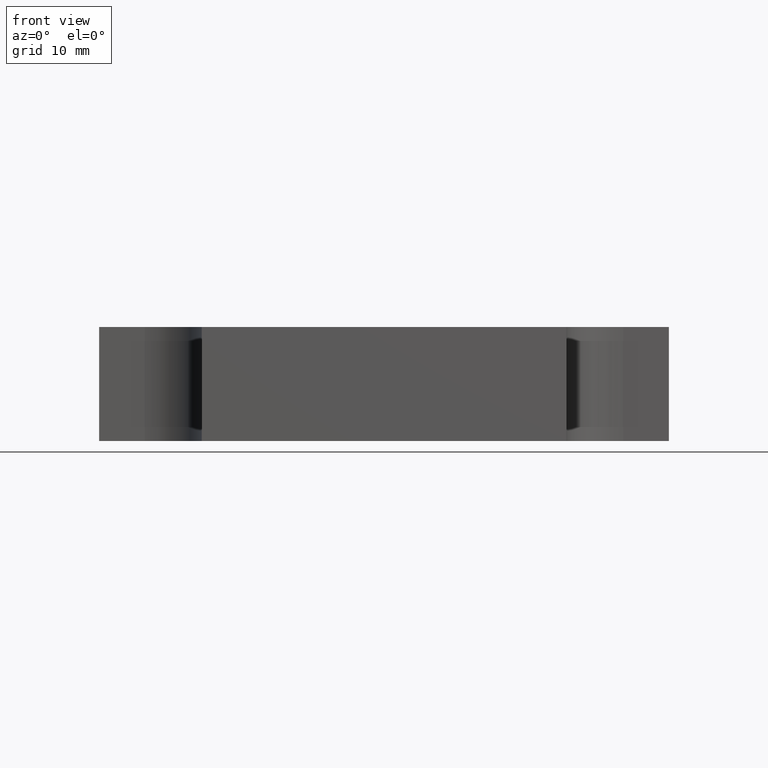
[diagram: clean part render]
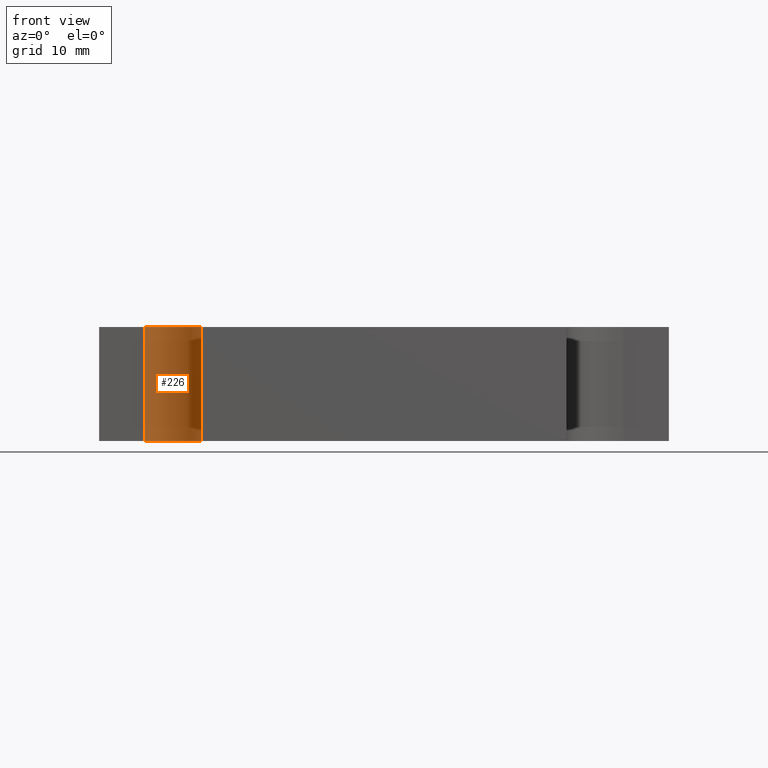
[diagram: same view with one face highlighted and labeled with its STEP entity id]
A machine part, front view. The second image highlights one B-rep face of the part: STEP entity #226.
In plain terms, the highlighted cylindrical surface (partial cylindrical patch) has radius 5 mm, axis along (0, 0, 1).
Its self-contained STEP definition (entity closure, byte-faithful):
#17=CYLINDRICAL_SURFACE('',#264,5.);
#26=FACE_OUTER_BOUND('',#38,.T.);
#38=EDGE_LOOP('',(#186,#187,#188,#189));
#43=CIRCLE('',#255,5.);
#45=CIRCLE('',#265,5.);
#67=LINE('',#380,#93);
#68=LINE('',#384,#94);
#93=VECTOR('',#314,10.);
#94=VECTOR('',#319,10.);
#106=VERTEX_POINT('',#346);
#107=VERTEX_POINT('',#348);
#115=VERTEX_POINT('',#378);
#116=VERTEX_POINT('',#382);
#126=EDGE_CURVE('',#107,#106,#43,.T.);
#142=EDGE_CURVE('',#115,#106,#67,.T.);
#143=EDGE_CURVE('',#115,#116,#45,.T.);
#144=EDGE_CURVE('',#116,#107,#68,.T.);
#186=ORIENTED_EDGE('',*,*,#143,.T.);
#187=ORIENTED_EDGE('',*,*,#144,.T.);
#188=ORIENTED_EDGE('',*,*,#126,.T.);
#189=ORIENTED_EDGE('',*,*,#142,.F.);
#226=ADVANCED_FACE('',(#26),#17,.F.);
#255=AXIS2_PLACEMENT_3D('',#349,#282,#283);
#264=AXIS2_PLACEMENT_3D('',#381,#315,#316);
#265=AXIS2_PLACEMENT_3D('',#383,#317,#318);
#282=DIRECTION('center_axis',(0.,0.,-1.));
#283=DIRECTION('ref_axis',(1.,2.22044604925031E-16,0.));
#314=DIRECTION('',(0.,0.,-1.));
#315=DIRECTION('center_axis',(0.,0.,1.));
#316=DIRECTION('ref_axis',(1.,2.22044604925031E-16,0.));
#317=DIRECTION('center_axis',(0.,0.,1.));
#318=DIRECTION('ref_axis',(1.,2.22044604925031E-16,0.));
#319=DIRECTION('',(0.,0.,-1.));
#346=CARTESIAN_POINT('',(-16.,10.,-5.));
#348=CARTESIAN_POINT('',(-21.,15.,-5.));
#349=CARTESIAN_POINT('Origin',(-21.,10.,-5.));
#378=CARTESIAN_POINT('',(-16.,10.,5.));
#380=CARTESIAN_POINT('',(-16.,10.,0.));
#381=CARTESIAN_POINT('Origin',(-21.,10.,0.));
#382=CARTESIAN_POINT('',(-21.,15.,5.));
#383=CARTESIAN_POINT('Origin',(-21.,10.,5.));
#384=CARTESIAN_POINT('',(-21.,15.,0.));